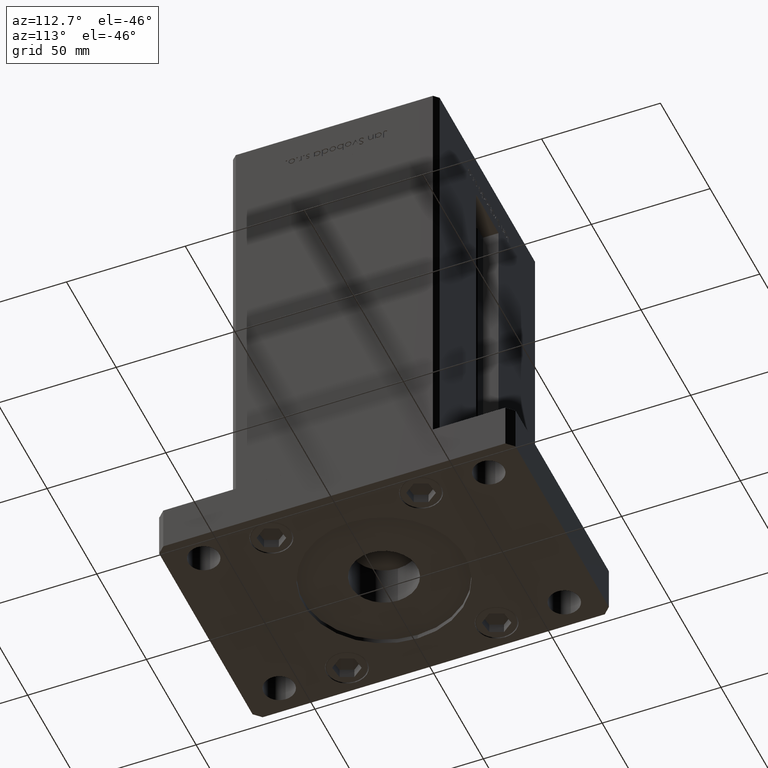
[diagram: clean part render]
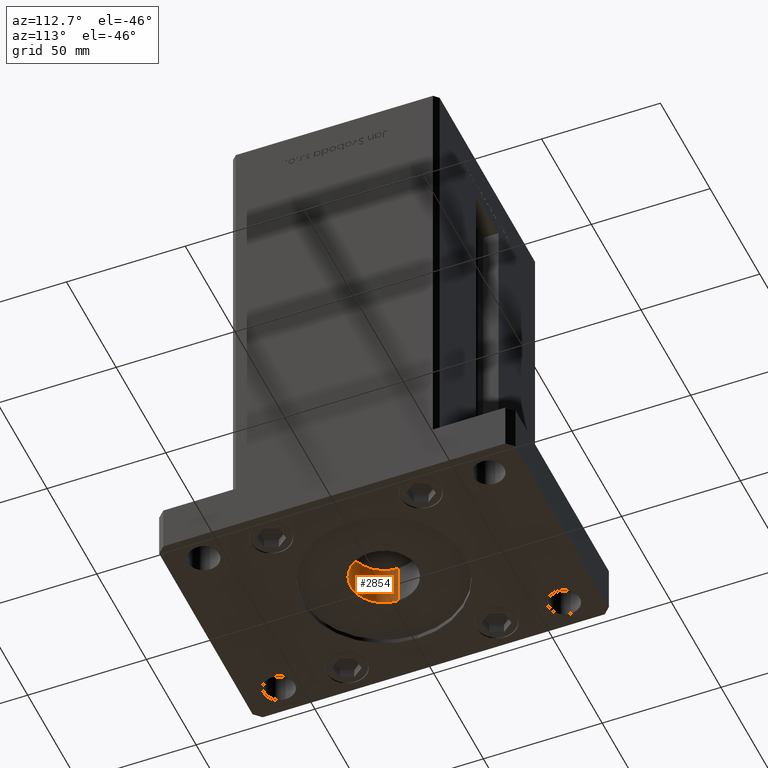
[diagram: same view with one face highlighted and labeled with its STEP entity id]
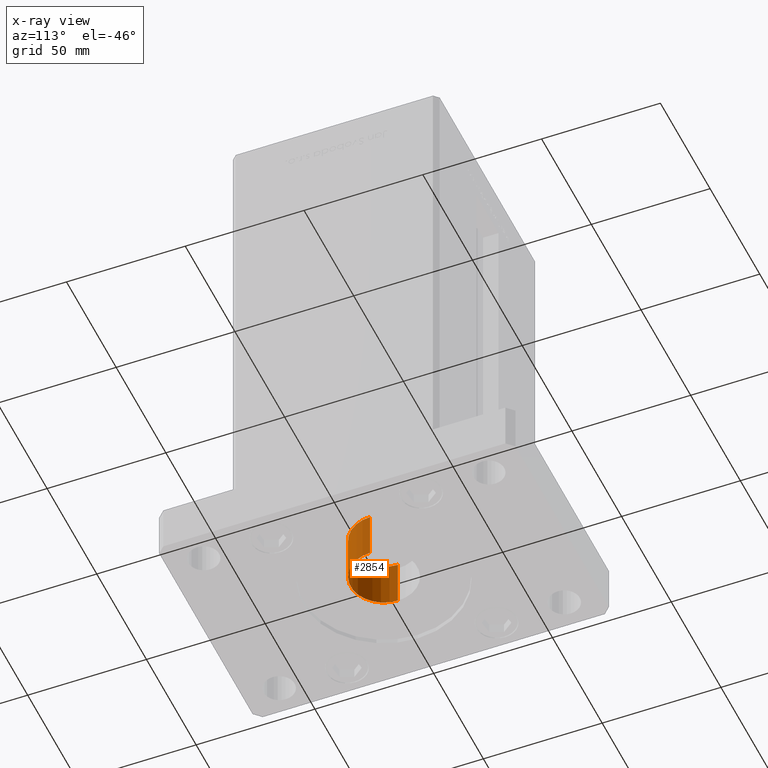
[diagram: x-ray of the same camera — body ghosted, the highlighted face saturated]
A machine part, auxiliary view. The second image highlights one B-rep face of the part: STEP entity #2854.
The next image is the same camera in x-ray: the body ghosted, the highlighted face saturated — about 0% of this face is hidden behind the body in this view.
In plain terms, the highlighted cylindrical surface (edge-blend (fillet) strip) has radius 14 mm, axis along (0, 0, 1).
Its self-contained STEP definition (entity closure, byte-faithful):
#208 = CARTESIAN_POINT ( 'NONE',  ( -14.00000000000000000, 1.714505518806294638E-15, 2.000000000000000000 ) ) ;
#1292 = AXIS2_PLACEMENT_3D ( 'NONE', #18945, #35238, #43909 ) ;
#1655 = AXIS2_PLACEMENT_3D ( 'NONE', #42714, #13396, #9868 ) ;
#1962 = CARTESIAN_POINT ( 'NONE',  ( -14.00000000000000000, 1.714505518806294638E-15, 22.00000000000000000 ) ) ;
#1974 = CYLINDRICAL_SURFACE ( 'NONE', #1655, 14.00000000000000000 ) ;
#2854 = ADVANCED_FACE ( 'NONE', ( #9331 ), #1974, .F. ) ;
#3965 = VERTEX_POINT ( 'NONE', #41790 ) ;
#5693 = ORIENTED_EDGE ( 'NONE', *, *, #9726, .F. ) ;
#8654 = EDGE_CURVE ( 'NONE', #38137, #45491, #16815, .T. ) ;
#9331 = FACE_OUTER_BOUND ( 'NONE', #25530, .T. ) ;
#9561 = VECTOR ( 'NONE', #42965, 1000.000000000000000 ) ;
#9726 = EDGE_CURVE ( 'NONE', #38137, #53445, #15652, .T. ) ;
#9868 = DIRECTION ( 'NONE',  ( 1.000000000000000000, 0.000000000000000000, 0.000000000000000000 ) ) ;
#9928 = CARTESIAN_POINT ( 'NONE',  ( 0.000000000000000000, 0.000000000000000000, 2.000000000000000000 ) ) ;
#12731 = DIRECTION ( 'NONE',  ( -0.000000000000000000, -0.000000000000000000, 1.000000000000000000 ) ) ;
#13396 = DIRECTION ( 'NONE',  ( -0.000000000000000000, -0.000000000000000000, 1.000000000000000000 ) ) ;
#15652 = CIRCLE ( 'NONE', #43381, 14.00000000000000000 ) ;
#16573 = CARTESIAN_POINT ( 'NONE',  ( 14.00000000000000000, 0.000000000000000000, 2.000000000000000000 ) ) ;
#16815 = LINE ( 'NONE', #32572, #50273 ) ;
#16917 = CIRCLE ( 'NONE', #1292, 14.00000000000000000 ) ;
#18945 = CARTESIAN_POINT ( 'NONE',  ( 0.000000000000000000, 0.000000000000000000, 22.00000000000000000 ) ) ;
#20395 = ORIENTED_EDGE ( 'NONE', *, *, #49912, .F. ) ;
#25530 = EDGE_LOOP ( 'NONE', ( #5693, #48089, #30954, #20395 ) ) ;
#26697 = EDGE_CURVE ( 'NONE', #45491, #3965, #16917, .T. ) ;
#29762 = DIRECTION ( 'NONE',  ( -1.000000000000000000, 0.000000000000000000, 0.000000000000000000 ) ) ;
#30954 = ORIENTED_EDGE ( 'NONE', *, *, #26697, .T. ) ;
#32572 = CARTESIAN_POINT ( 'NONE',  ( -14.00000000000000000, 1.714505518806294638E-15, 0.000000000000000000 ) ) ;
#35238 = DIRECTION ( 'NONE',  ( 0.000000000000000000, 0.000000000000000000, 1.000000000000000000 ) ) ;
#38137 = VERTEX_POINT ( 'NONE', #208 ) ;
#38372 = LINE ( 'NONE', #43226, #9561 ) ;
#41790 = CARTESIAN_POINT ( 'NONE',  ( 14.00000000000000000, 0.000000000000000000, 22.00000000000000000 ) ) ;
#42714 = CARTESIAN_POINT ( 'NONE',  ( 0.000000000000000000, 0.000000000000000000, 0.000000000000000000 ) ) ;
#42965 = DIRECTION ( 'NONE',  ( -0.000000000000000000, -0.000000000000000000, 1.000000000000000000 ) ) ;
#43226 = CARTESIAN_POINT ( 'NONE',  ( 14.00000000000000000, 0.000000000000000000, 0.000000000000000000 ) ) ;
#43296 = DIRECTION ( 'NONE',  ( -0.000000000000000000, -0.000000000000000000, 1.000000000000000000 ) ) ;
#43381 = AXIS2_PLACEMENT_3D ( 'NONE', #9928, #43296, #29762 ) ;
#43909 = DIRECTION ( 'NONE',  ( 1.000000000000000000, 0.000000000000000000, 0.000000000000000000 ) ) ;
#45491 = VERTEX_POINT ( 'NONE', #1962 ) ;
#48089 = ORIENTED_EDGE ( 'NONE', *, *, #8654, .T. ) ;
#49912 = EDGE_CURVE ( 'NONE', #53445, #3965, #38372, .T. ) ;
#50273 = VECTOR ( 'NONE', #12731, 1000.000000000000000 ) ;
#53445 = VERTEX_POINT ( 'NONE', #16573 ) ;